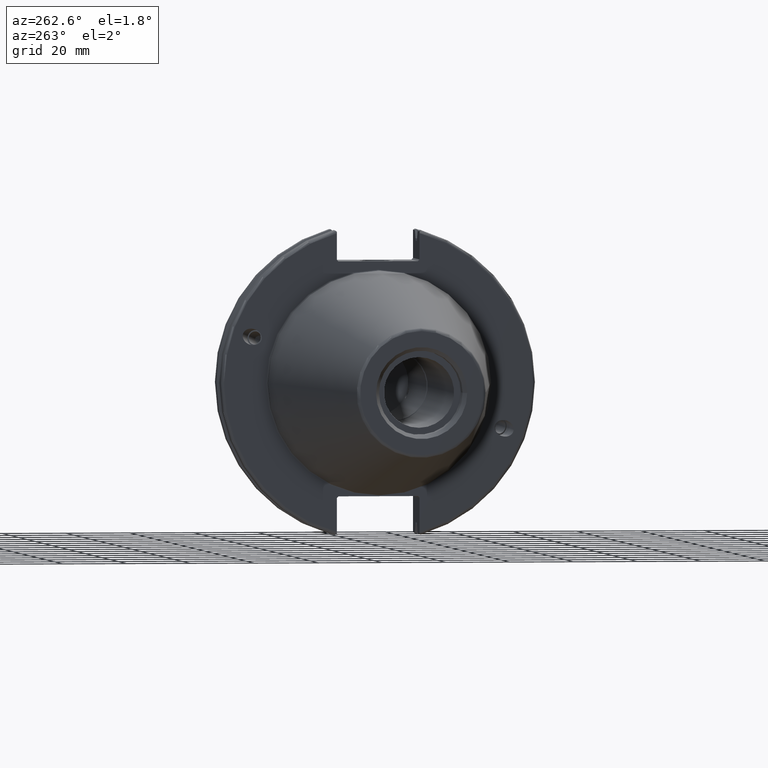
[diagram: clean part render]
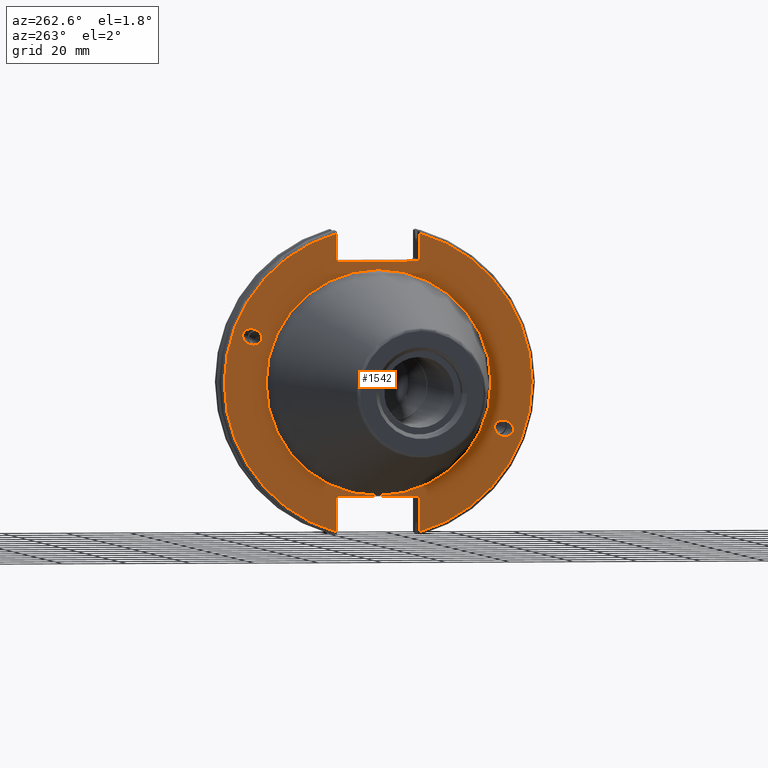
[diagram: same view with one face highlighted and labeled with its STEP entity id]
A machine part, auxiliary view. The second image highlights one B-rep face of the part: STEP entity #1542.
In plain terms, the highlighted planar face has unit normal (-1, 0, 0).
Its self-contained STEP definition (entity closure, byte-faithful):
#98=FACE_BOUND('',#304,.T.);
#99=FACE_BOUND('',#305,.T.);
#100=FACE_BOUND('',#306,.T.);
#127=PLANE('',#1712);
#197=FACE_OUTER_BOUND('',#303,.T.);
#303=EDGE_LOOP('',(#1229,#1230,#1231,#1232,#1233,#1234,#1235,#1236,#1237,
#1238,#1239,#1240));
#304=EDGE_LOOP('',(#1241));
#305=EDGE_LOOP('',(#1242));
#306=EDGE_LOOP('',(#1243));
#405=CIRCLE('',#1710,35.125);
#407=CIRCLE('',#1713,48.2125);
#408=CIRCLE('',#1714,48.2125);
#479=LINE('',#2868,#573);
#480=LINE('',#2870,#574);
#481=LINE('',#2872,#575);
#482=LINE('',#2874,#576);
#483=LINE('',#2876,#577);
#484=LINE('',#2880,#578);
#485=LINE('',#2882,#579);
#486=LINE('',#2884,#580);
#487=LINE('',#2886,#581);
#488=LINE('',#2887,#582);
#573=VECTOR('',#2039,10.);
#574=VECTOR('',#2040,10.);
#575=VECTOR('',#2041,10.);
#576=VECTOR('',#2042,10.);
#577=VECTOR('',#2043,10.);
#578=VECTOR('',#2046,10.);
#579=VECTOR('',#2047,10.);
#580=VECTOR('',#2048,10.);
#581=VECTOR('',#2049,10.);
#582=VECTOR('',#2050,10.);
#622=ELLIPSE('',#1668,3.05193647190364,2.5);
#623=ELLIPSE('',#1702,3.05193647190364,2.5);
#681=VERTEX_POINT('',#2585);
#719=VERTEX_POINT('',#2844);
#724=VERTEX_POINT('',#2859);
#725=VERTEX_POINT('',#2864);
#726=VERTEX_POINT('',#2865);
#727=VERTEX_POINT('',#2867);
#728=VERTEX_POINT('',#2869);
#729=VERTEX_POINT('',#2871);
#730=VERTEX_POINT('',#2873);
#731=VERTEX_POINT('',#2875);
#732=VERTEX_POINT('',#2877);
#733=VERTEX_POINT('',#2879);
#734=VERTEX_POINT('',#2881);
#735=VERTEX_POINT('',#2883);
#736=VERTEX_POINT('',#2885);
#852=EDGE_CURVE('',#681,#681,#622,.T.);
#903=EDGE_CURVE('',#719,#719,#623,.T.);
#910=EDGE_CURVE('',#724,#724,#405,.T.);
#912=EDGE_CURVE('',#725,#726,#407,.T.);
#913=EDGE_CURVE('',#725,#727,#479,.T.);
#914=EDGE_CURVE('',#728,#727,#480,.T.);
#915=EDGE_CURVE('',#728,#729,#481,.T.);
#916=EDGE_CURVE('',#730,#729,#482,.T.);
#917=EDGE_CURVE('',#730,#731,#483,.T.);
#918=EDGE_CURVE('',#732,#731,#408,.T.);
#919=EDGE_CURVE('',#732,#733,#484,.T.);
#920=EDGE_CURVE('',#734,#733,#485,.T.);
#921=EDGE_CURVE('',#734,#735,#486,.T.);
#922=EDGE_CURVE('',#736,#735,#487,.T.);
#923=EDGE_CURVE('',#736,#726,#488,.T.);
#1229=ORIENTED_EDGE('',*,*,#912,.F.);
#1230=ORIENTED_EDGE('',*,*,#913,.T.);
#1231=ORIENTED_EDGE('',*,*,#914,.F.);
#1232=ORIENTED_EDGE('',*,*,#915,.T.);
#1233=ORIENTED_EDGE('',*,*,#916,.F.);
#1234=ORIENTED_EDGE('',*,*,#917,.T.);
#1235=ORIENTED_EDGE('',*,*,#918,.F.);
#1236=ORIENTED_EDGE('',*,*,#919,.T.);
#1237=ORIENTED_EDGE('',*,*,#920,.F.);
#1238=ORIENTED_EDGE('',*,*,#921,.T.);
#1239=ORIENTED_EDGE('',*,*,#922,.F.);
#1240=ORIENTED_EDGE('',*,*,#923,.T.);
#1241=ORIENTED_EDGE('',*,*,#852,.T.);
#1242=ORIENTED_EDGE('',*,*,#903,.T.);
#1243=ORIENTED_EDGE('',*,*,#910,.F.);
#1542=ADVANCED_FACE('',(#197,#98,#99,#100),#127,.T.);
#1668=AXIS2_PLACEMENT_3D('',#2587,#1929,#1930);
#1702=AXIS2_PLACEMENT_3D('',#2846,#2013,#2014);
#1710=AXIS2_PLACEMENT_3D('',#2861,#2031,#2032);
#1712=AXIS2_PLACEMENT_3D('',#2863,#2035,#2036);
#1713=AXIS2_PLACEMENT_3D('',#2866,#2037,#2038);
#1714=AXIS2_PLACEMENT_3D('',#2878,#2044,#2045);
#1929=DIRECTION('center_axis',(1.,0.,0.));
#1930=DIRECTION('ref_axis',(0.,-0.939692620785908,-0.342020143325668));
#2013=DIRECTION('center_axis',(1.,0.,0.));
#2014=DIRECTION('ref_axis',(0.,0.939692620785908,0.342020143325669));
#2031=DIRECTION('center_axis',(-1.,0.,0.));
#2032=DIRECTION('ref_axis',(0.,-1.,1.83697019872103E-16));
#2035=DIRECTION('center_axis',(-1.,0.,0.));
#2036=DIRECTION('ref_axis',(0.,0.,1.));
#2037=DIRECTION('center_axis',(1.,0.,0.));
#2038=DIRECTION('ref_axis',(0.,-1.,1.60812264967664E-16));
#2039=DIRECTION('',(0.,0.,-1.));
#2040=DIRECTION('',(0.,-0.707106781186549,0.707106781186546));
#2041=DIRECTION('',(0.,1.,0.));
#2042=DIRECTION('',(0.,-0.707106781186549,-0.707106781186546));
#2043=DIRECTION('',(0.,0.,1.));
#2044=DIRECTION('center_axis',(1.,0.,0.));
#2045=DIRECTION('ref_axis',(0.,1.,-6.12323399573677E-17));
#2046=DIRECTION('',(0.,0.,1.));
#2047=DIRECTION('',(0.,0.707106781186549,-0.707106781186546));
#2048=DIRECTION('',(0.,-1.,0.));
#2049=DIRECTION('',(0.,0.707106781186549,0.707106781186546));
#2050=DIRECTION('',(0.,0.,-1.));
#2585=CARTESIAN_POINT('',(3.175,-36.5992078912529,-13.3210222701368));
#2587=CARTESIAN_POINT('Origin',(3.175,-39.4670900730082,-14.3648460196781));
#2844=CARTESIAN_POINT('',(3.175,36.5992078912529,13.3210222701368));
#2846=CARTESIAN_POINT('Origin',(3.175,39.4670900730082,14.3648460196781));
#2859=CARTESIAN_POINT('',(3.175,-4.30157188200508E-15,35.125));
#2861=CARTESIAN_POINT('Origin',(3.175,0.,0.));
#2863=CARTESIAN_POINT('Origin',(3.175,49.2125,0.));
#2864=CARTESIAN_POINT('',(3.175,-12.95,46.4407434937254));
#2865=CARTESIAN_POINT('',(3.175,-12.95,-46.4407434937254));
#2866=CARTESIAN_POINT('Origin',(3.175,0.,0.));
#2867=CARTESIAN_POINT('',(3.175,-12.95,38.219));
#2868=CARTESIAN_POINT('',(3.175,-12.95,18.8595));
#2869=CARTESIAN_POINT('',(3.175,-12.45,37.719));
#2870=CARTESIAN_POINT('',(3.175,12.2703750000001,12.998625));
#2871=CARTESIAN_POINT('',(3.175,12.45,37.719));
#2872=CARTESIAN_POINT('',(3.175,24.60625,37.719));
#2873=CARTESIAN_POINT('',(3.175,12.95,38.219));
#2874=CARTESIAN_POINT('',(3.175,12.335875,37.604875));
#2875=CARTESIAN_POINT('',(3.175,12.95,46.4407434937254));
#2876=CARTESIAN_POINT('',(3.175,12.95,18.8595));
#2877=CARTESIAN_POINT('',(3.175,12.95,-46.4407434937254));
#2878=CARTESIAN_POINT('Origin',(3.175,0.,0.));
#2879=CARTESIAN_POINT('',(3.175,12.95,-35.806));
#2880=CARTESIAN_POINT('',(3.175,12.95,-17.653));
#2881=CARTESIAN_POINT('',(3.175,12.45,-35.306));
#2882=CARTESIAN_POINT('',(3.175,12.939125,-35.795125));
#2883=CARTESIAN_POINT('',(3.175,-12.45,-35.306));
#2884=CARTESIAN_POINT('',(3.175,24.60625,-35.306));
#2885=CARTESIAN_POINT('',(3.175,-12.95,-35.806));
#2886=CARTESIAN_POINT('',(3.175,11.6671250000001,-11.188875));
#2887=CARTESIAN_POINT('',(3.175,-12.95,-17.653));